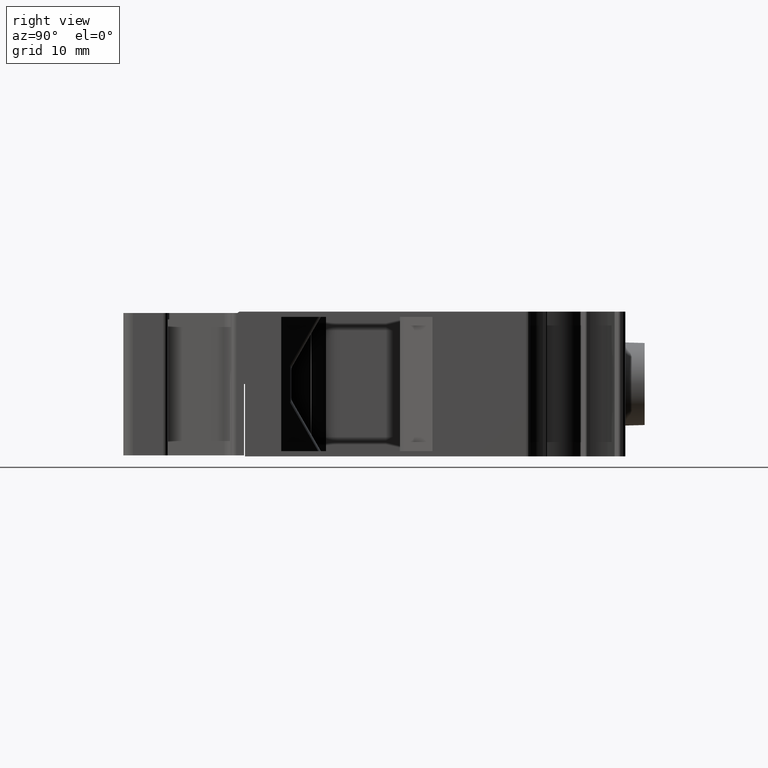
[diagram: clean part render]
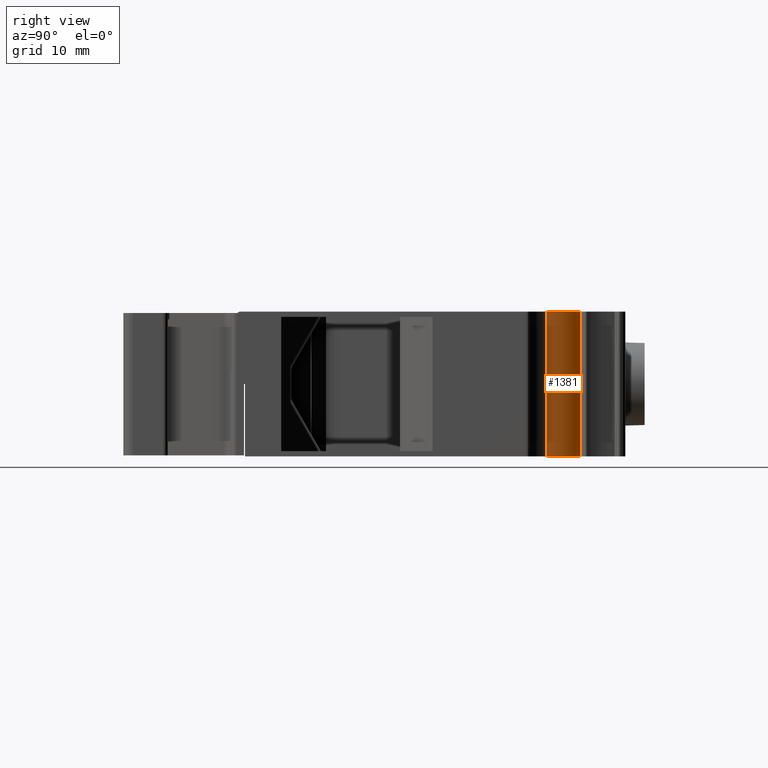
[diagram: same view with one face highlighted and labeled with its STEP entity id]
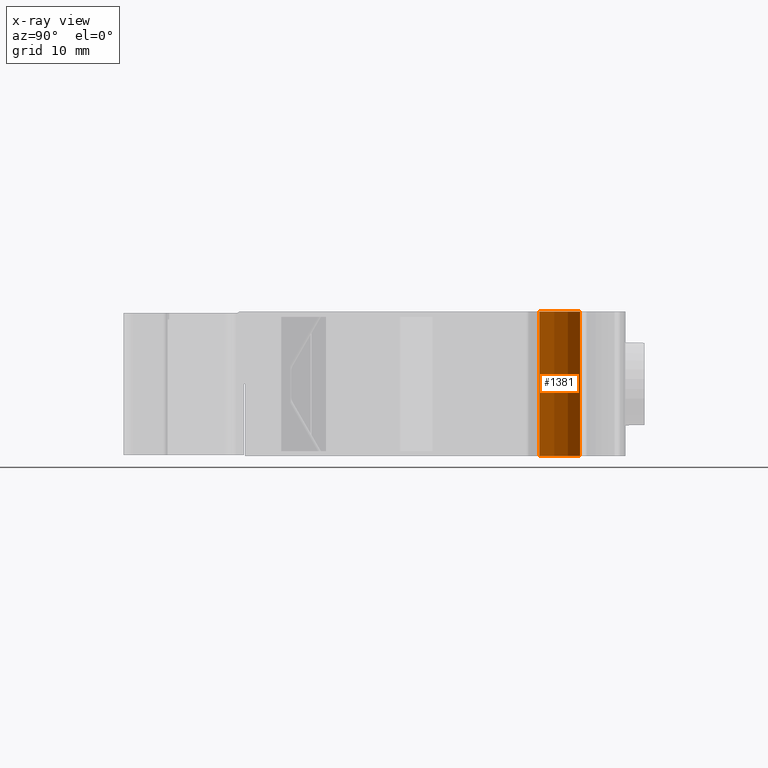
[diagram: x-ray of the same camera — body ghosted, the highlighted face saturated]
A machine part, right view. The second image highlights one B-rep face of the part: STEP entity #1381.
The next image is the same camera in x-ray: the body ghosted, the highlighted face saturated — about 0% of this face is hidden behind the body in this view.
In plain terms, the highlighted cylindrical surface (partial cylindrical patch) has radius 10 mm, axis along (0, -0, -1).
Its self-contained STEP definition (entity closure, byte-faithful):
#1381 = ADVANCED_FACE ( 'NONE', ( #6535 ), #6545, .T. ) ;
#4149 = CIRCLE ( 'NONE', #4154, 10.00000000000034100 ) ;
#4154 = AXIS2_PLACEMENT_3D ( 'NONE', #5902, #5900, #5897 ) ;
#4518 = AXIS2_PLACEMENT_3D ( 'NONE', #16707, #16725, #16734 ) ;
#4530 = CIRCLE ( 'NONE', #4518, 10.00000000000034100 ) ;
#5005 = EDGE_CURVE ( 'NONE', #17306, #17292, #4530, .T. ) ;
#5190 = EDGE_CURVE ( 'NONE', #17252, #17179, #4149, .T. ) ;
#5897 = DIRECTION ( 'NONE',  ( 1.000000000000000000, 1.110223024625118700E-014, 0.0000000000000000000 ) ) ;
#5900 = DIRECTION ( 'NONE',  ( -0.0000000000000000000, -0.0000000000000000000, -1.000000000000000000 ) ) ;
#5902 = CARTESIAN_POINT ( 'NONE',  ( -295.9457625000320000, 319.2646944557744700, -90.79229317582741000 ) ) ;
#6535 = FACE_OUTER_BOUND ( 'NONE', #15920, .T. ) ;
#6544 = DIRECTION ( 'NONE',  ( 1.024210827134004000E-013, -4.089659118477320100E-014, -1.000000000000000000 ) ) ;
#6545 = CYLINDRICAL_SURFACE ( 'NONE', #10291, 10.00000000000034100 ) ;
#6546 = DIRECTION ( 'NONE',  ( -1.000000000000000000, 0.0000000000000000000, -1.023486850826281200E-013 ) ) ;
#6570 = CARTESIAN_POINT ( 'NONE',  ( -295.9457625000384800, 319.2646944557770300, -26.34572616096865300 ) ) ;
#8669 = VECTOR ( 'NONE', #14156, 1000.000000000000000 ) ;
#8739 = VECTOR ( 'NONE', #14178, 1000.000000000000000 ) ;
#8937 = CARTESIAN_POINT ( 'NONE',  ( -286.3330764089375300, 322.0208269116054700, -90.79229317582741000 ) ) ;
#9001 = CARTESIAN_POINT ( 'NONE',  ( -288.7526394036789800, 326.2115628236595100, -90.79229317582741000 ) ) ;
#9014 = CARTESIAN_POINT ( 'NONE',  ( -286.3330764089355400, 322.0208269116034800, -105.7880507515719900 ) ) ;
#9077 = CARTESIAN_POINT ( 'NONE',  ( -288.7526394036759700, 326.2115628236570000, -105.7880507515724000 ) ) ;
#10291 = AXIS2_PLACEMENT_3D ( 'NONE', #6570, #6544, #6546 ) ;
#13653 = ORIENTED_EDGE ( 'NONE', *, *, #5005, .F. ) ;
#13657 = ORIENTED_EDGE ( 'NONE', *, *, #5190, .T. ) ;
#13659 = ORIENTED_EDGE ( 'NONE', *, *, #20042, .T. ) ;
#13670 = ORIENTED_EDGE ( 'NONE', *, *, #20017, .F. ) ;
#14111 = LINE ( 'NONE', #14158, #8669 ) ;
#14156 = DIRECTION ( 'NONE',  ( 1.024210827134004000E-013, -4.089659118477320100E-014, -1.000000000000000000 ) ) ;
#14158 = CARTESIAN_POINT ( 'NONE',  ( -288.7526394036839300, 326.2115628236604700, -26.34572616096815200 ) ) ;
#14166 = CARTESIAN_POINT ( 'NONE',  ( -286.3330764089435000, 322.0208269116064900, -26.34572616096775400 ) ) ;
#14178 = DIRECTION ( 'NONE',  ( 1.024210827134004000E-013, -4.089659118477320100E-014, -1.000000000000000000 ) ) ;
#14197 = LINE ( 'NONE', #14166, #8739 ) ;
#15920 = EDGE_LOOP ( 'NONE', ( #13653, #13670, #13657, #13659 ) ) ;
#16707 = CARTESIAN_POINT ( 'NONE',  ( -295.9457625000300100, 319.2646944557739600, -105.7880507515730000 ) ) ;
#16725 = DIRECTION ( 'NONE',  ( 1.024210827134004000E-013, -4.089659118477320100E-014, -1.000000000000000000 ) ) ;
#16734 = DIRECTION ( 'NONE',  ( -1.000000000000000000, 0.0000000000000000000, -1.026956297778234800E-013 ) ) ;
#17179 = VERTEX_POINT ( 'NONE', #8937 ) ;
#17252 = VERTEX_POINT ( 'NONE', #9001 ) ;
#17292 = VERTEX_POINT ( 'NONE', #9014 ) ;
#17306 = VERTEX_POINT ( 'NONE', #9077 ) ;
#20017 = EDGE_CURVE ( 'NONE', #17252, #17306, #14111, .T. ) ;
#20042 = EDGE_CURVE ( 'NONE', #17179, #17292, #14197, .T. ) ;